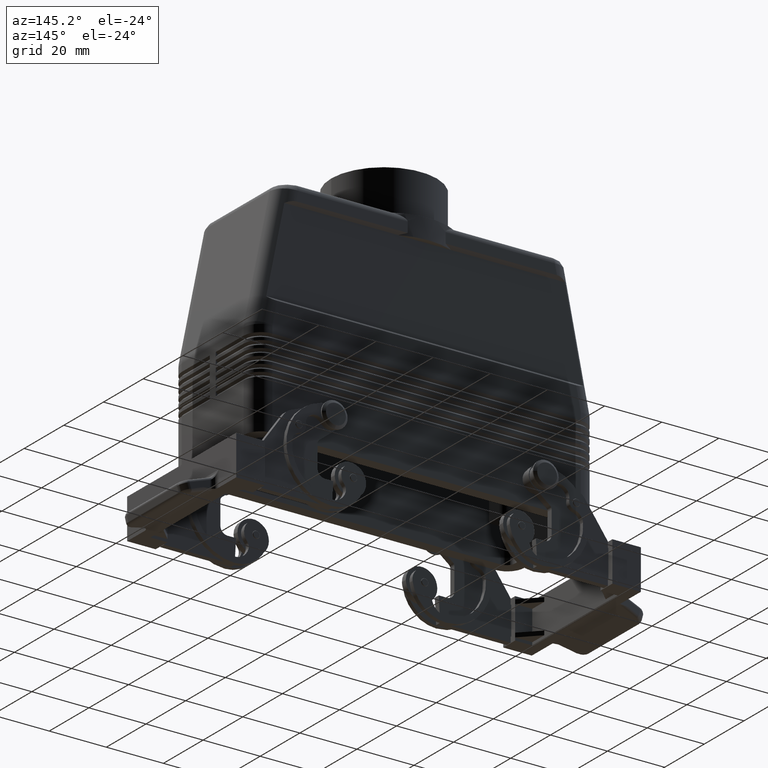
[diagram: clean part render]
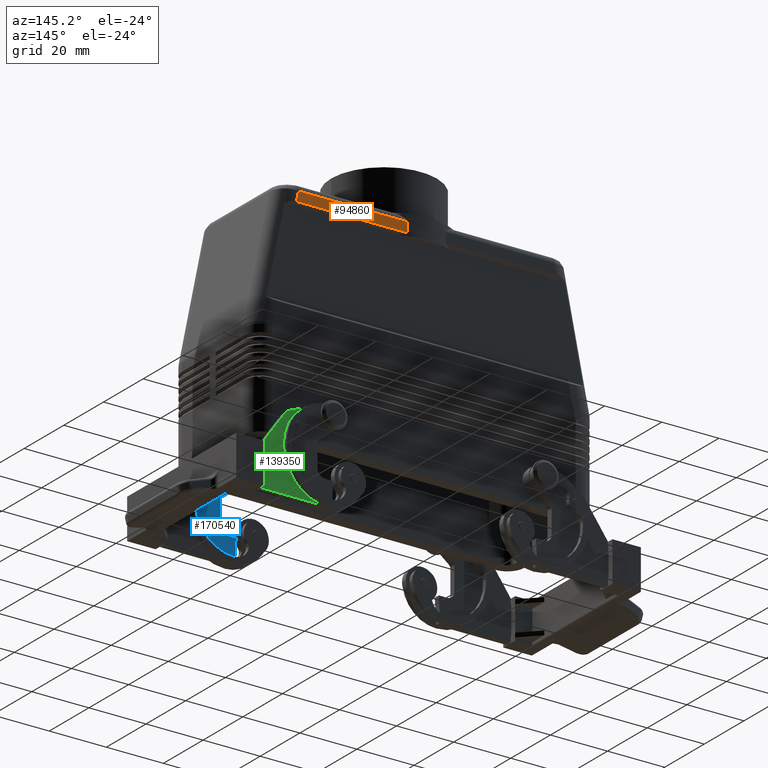
[diagram: same view with three faces highlighted in distinct colors, each labeled with its STEP entity id]
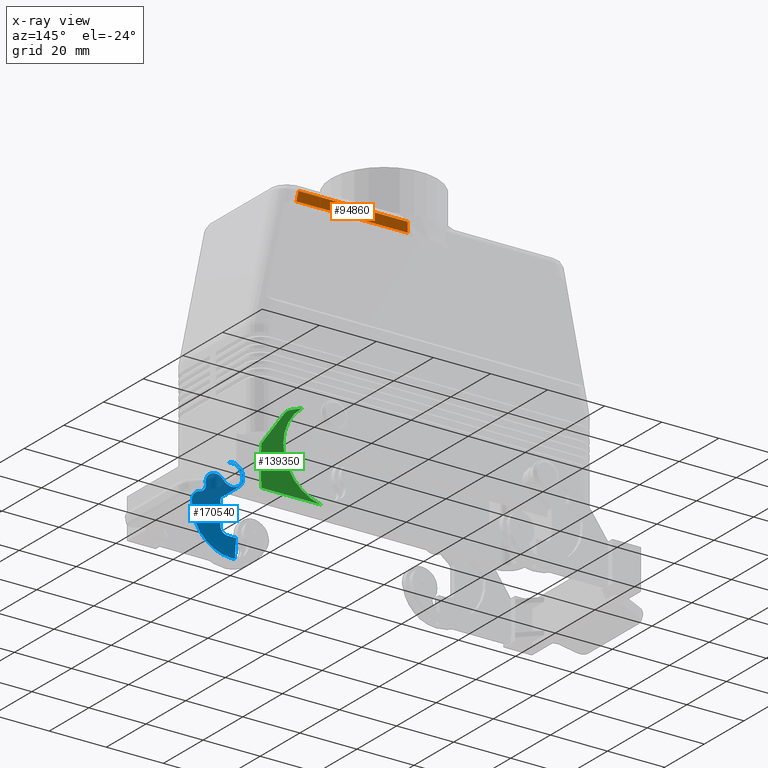
[diagram: x-ray of the same camera — body ghosted, the three highlighted faces saturated]
A machine part, auxiliary view with three faces highlighted in distinct colors.
The next image is the same camera in x-ray (body ghosted, the three faces saturated) — at least one of them is partly hidden behind the body in this view.
Their STEP definitions:

[orange] entity #94860 — the highlighted planar face has unit normal (0, 1, 0).
#9090=CARTESIAN_POINT('',(44.8868159268382,21.5,78.5));
#9100=VERTEX_POINT('',#9090);
#9130=CARTESIAN_POINT('',(45.6018696902791,21.5,75.));
#9140=DIRECTION('',(-0.200166412454263,0.,0.979761913591863));
#9150=VECTOR('',#9140,1.);
#9160=LINE('',#9130,#9150);
#9170=CARTESIAN_POINT('',(45.6018696902791,21.5,75.));
#9180=VERTEX_POINT('',#9170);
#9190=EDGE_CURVE('',#9180,#9100,#9160,.T.);
#63010=CARTESIAN_POINT('',(6.6332495807108,21.5,78.5));
#63020=VERTEX_POINT('',#63010);
#63050=CARTESIAN_POINT('',(44.8868159268382,21.5,78.5));
#63060=DIRECTION('',(-1.,0.,0.));
#63070=VECTOR('',#63060,1.);
#63080=LINE('',#63050,#63070);
#63090=EDGE_CURVE('',#9100,#63020,#63080,.T.);
#89880=CARTESIAN_POINT('',(6.6332495807108,21.5,75.));
#89890=VERTEX_POINT('',#89880);
#89920=CARTESIAN_POINT('',(6.63324958071082,21.5,74.));
#89930=DIRECTION('',(0.,0.,1.));
#89940=VECTOR('',#89930,1.);
#89950=LINE('',#89920,#89940);
#89960=EDGE_CURVE('',#89890,#63020,#89950,.T.);
#93710=CARTESIAN_POINT('',(0.,21.5,75.));
#93720=DIRECTION('',(-1.,0.,-0.));
#93730=VECTOR('',#93720,1.);
#93740=LINE('',#93710,#93730);
#93750=EDGE_CURVE('',#9180,#89890,#93740,.T.);
#94750=CARTESIAN_POINT('',(2.73638756975397,21.5,74.65));
#94760=DIRECTION('',(0.,1.,0.));
#94770=DIRECTION('',(1.,-0.,0.));
#94780=AXIS2_PLACEMENT_3D('',#94750,#94760,#94770);
#94790=PLANE('',#94780);
#94800=ORIENTED_EDGE('',*,*,#93750,.T.);
#94810=ORIENTED_EDGE('',*,*,#9190,.F.);
#94820=ORIENTED_EDGE('',*,*,#63090,.F.);
#94830=ORIENTED_EDGE('',*,*,#89960,.T.);
#94840=EDGE_LOOP('',(#94830,#94820,#94810,#94800));
#94850=FACE_OUTER_BOUND('',#94840,.T.);
#94860=ADVANCED_FACE('',(#94850),#94790,.T.);

[blue] entity #170540 — the highlighted planar face has unit normal (0, 1, 0).
#165530=CARTESIAN_POINT('',(34.5152545596591,-23.5,4.36534848879418));
#165540=VERTEX_POINT('',#165530);
#165620=CARTESIAN_POINT('',(40.4317795401278,-23.5,-0.324505683297822));
#165630=VERTEX_POINT('',#165620);
#165660=CARTESIAN_POINT('',(0.,-23.5,31.7245688304294));
#165670=DIRECTION('',(0.783662877801454,0.,-0.621186360085235));
#165680=VECTOR('',#165670,1.);
#165690=LINE('',#165660,#165680);
#165700=EDGE_CURVE('',#165540,#165630,#165690,.T.);
#165930=CARTESIAN_POINT('',(41.,-23.5,-1.5));
#165940=VERTEX_POINT('',#165930);
#165970=CARTESIAN_POINT('',(39.5000000000001,-23.5,-1.49999999999996));
#165980=DIRECTION('',(0.,1.,0.));
#165990=DIRECTION('',(1.,0.,0.));
#166000=AXIS2_PLACEMENT_3D('',#165970,#165980,#165990);
#166010=CIRCLE('',#166000,1.49999999999997);
#166020=EDGE_CURVE('',#165630,#165940,#166010,.T.);
#166250=CARTESIAN_POINT('',(41.,-23.5,-9.5));
#166260=VERTEX_POINT('',#166250);
#166290=CARTESIAN_POINT('',(41.,-23.5,0.));
#166300=DIRECTION('',(0.,0.,-1.));
#166310=VECTOR('',#166300,1.);
#166320=LINE('',#166290,#166310);
#166330=EDGE_CURVE('',#165940,#166260,#166320,.T.);
#166560=CARTESIAN_POINT('',(38.5,-23.5,-12.));
#166570=VERTEX_POINT('',#166560);
#166600=CARTESIAN_POINT('',(38.5,-23.5,-9.50000000000002));
#166610=DIRECTION('',(0.,1.,0.));
#166620=DIRECTION('',(1.,0.,0.));
#166630=AXIS2_PLACEMENT_3D('',#166600,#166610,#166620);
#166640=CIRCLE('',#166630,2.49999999999999);
#166650=EDGE_CURVE('',#166260,#166570,#166640,.T.);
#166880=CARTESIAN_POINT('',(35.5,-23.5,-12.));
#166890=VERTEX_POINT('',#166880);
#166920=CARTESIAN_POINT('',(0.,-23.5,-12.));
#166930=DIRECTION('',(-1.,0.,0.));
#166940=VECTOR('',#166930,1.);
#166950=LINE('',#166920,#166940);
#166960=EDGE_CURVE('',#166570,#166890,#166950,.T.);
#167350=CARTESIAN_POINT('',(35.8897158007142,-23.5,-18.6251686121422));
#167360=VERTEX_POINT('',#167350);
#167390=CARTESIAN_POINT('',(34.7941176470589,-23.5,0.));
#167400=DIRECTION('',(0.0587220219514677,0.,-0.998274373174996));
#167410=VECTOR('',#167400,1.);
#167420=LINE('',#167390,#167410);
#167430=EDGE_CURVE('',#166890,#167360,#167420,.T.);
#169240=CARTESIAN_POINT('',(38.4269414329817,-23.5,11.2368219313797));
#169250=VERTEX_POINT('',#169240);
#169280=CARTESIAN_POINT('',(0.,-23.5,25.9105194958872));
#169290=DIRECTION('',(-0.934205482844916,0.,0.356735358245434));
#169300=VECTOR('',#169290,1.);
#169310=LINE('',#169280,#169300);
#169320=CARTESIAN_POINT('',(38.6033381611588,-23.5,11.1694631423604));
#169330=VERTEX_POINT('',#169320);
#169340=EDGE_CURVE('',#169330,#169250,#169310,.T.);
#169610=CARTESIAN_POINT('',(37.,-23.5,7.5));
#169620=DIRECTION('',(-0.,-1.,-0.));
#169630=DIRECTION('',(1.,-0.,0.));
#169640=AXIS2_PLACEMENT_3D('',#169610,#169620,#169630);
#169650=CIRCLE('',#169640,4.00000000000001);
#169660=EDGE_CURVE('',#169250,#165540,#169650,.T.);
#169780=CARTESIAN_POINT('',(29.6858752550396,-23.5,-21.8710906839972));
#169790=DIRECTION('',(0.,1.,0.));
#169800=DIRECTION('',(1.,-0.,0.));
#169810=AXIS2_PLACEMENT_3D('',#169780,#169790,#169800);
#169820=PLANE('',#169810);
#169830=CARTESIAN_POINT('',(37.,-23.5,7.49999999999999));
#169840=DIRECTION('',(-0.,1.,-0.));
#169850=DIRECTION('',(-1.,0.,0.));
#169860=AXIS2_PLACEMENT_3D('',#169830,#169840,#169850);
#169870=CIRCLE('',#169860,3.75000000000001);
#169880=CARTESIAN_POINT('',(39.9402112933367,-23.5,5.17241379310345));
#169890=VERTEX_POINT('',#169880);
#169900=CARTESIAN_POINT('',(37.,-23.5,11.25));
#169910=VERTEX_POINT('',#169900);
#169920=EDGE_CURVE('',#169890,#169910,#169870,.T.);
#169930=ORIENTED_EDGE('',*,*,#169920,.F.);
#169940=CARTESIAN_POINT('',(37.,-23.5,-4.74999999999998));
#169950=DIRECTION('',(-0.,1.,-0.));
#169960=DIRECTION('',(-1.,0.,0.));
#169970=AXIS2_PLACEMENT_3D('',#169940,#169950,#169960);
#169980=CIRCLE('',#169970,16.);
#169990=EDGE_CURVE('',#169910,#169330,#169980,.T.);
#170000=ORIENTED_EDGE('',*,*,#169990,.F.);
#170010=ORIENTED_EDGE('',*,*,#169340,.F.);
#170020=ORIENTED_EDGE('',*,*,#169660,.F.);
#170030=ORIENTED_EDGE('',*,*,#165700,.F.);
#170040=ORIENTED_EDGE('',*,*,#166020,.F.);
#170050=ORIENTED_EDGE('',*,*,#166330,.F.);
#170060=ORIENTED_EDGE('',*,*,#166650,.F.);
#170070=ORIENTED_EDGE('',*,*,#166960,.F.);
#170080=ORIENTED_EDGE('',*,*,#167430,.F.);
#170090=CARTESIAN_POINT('',(37.,-23.5,-13.75));
#170100=DIRECTION('',(0.,-1.,0.));
#170110=DIRECTION('',(-1.,-0.,0.));
#170120=AXIS2_PLACEMENT_3D('',#170090,#170100,#170110);
#170130=CIRCLE('',#170120,5.);
#170140=CARTESIAN_POINT('',(37.,-23.5,-18.75));
#170150=VERTEX_POINT('',#170140);
#170160=EDGE_CURVE('',#167360,#170150,#170130,.T.);
#170170=ORIENTED_EDGE('',*,*,#170160,.F.);
#170180=CARTESIAN_POINT('',(37.,-23.5,-4.74999999999999));
#170190=DIRECTION('',(0.,-1.,0.));
#170200=DIRECTION('',(-1.,-0.,0.));
#170210=AXIS2_PLACEMENT_3D('',#170180,#170190,#170200);
#170220=CIRCLE('',#170210,14.);
#170230=CARTESIAN_POINT('',(50.9531315773184,-23.5,-3.60539562029516));
#170240=VERTEX_POINT('',#170230);
#170250=EDGE_CURVE('',#170150,#170240,#170220,.T.);
#170260=ORIENTED_EDGE('',*,*,#170250,.F.);
#170270=CARTESIAN_POINT('',(47.4648486829888,-23.5,-3.89154671522139));
#170280=DIRECTION('',(0.,-1.,0.));
#170290=DIRECTION('',(-1.,-0.,0.));
#170300=AXIS2_PLACEMENT_3D('',#170270,#170280,#170290);
#170310=CIRCLE('',#170300,3.50000000000002);
#170320=CARTESIAN_POINT('',(48.1273051166499,-23.5,-0.454811131342239));
#170330=VERTEX_POINT('',#170320);
#170340=EDGE_CURVE('',#170240,#170330,#170310,.T.);
#170350=ORIENTED_EDGE('',*,*,#170340,.F.);
#170360=CARTESIAN_POINT('',(48.6004882835506,-23.5,1.99999999999999));
#170370=DIRECTION('',(-0.,1.,-0.));
#170380=DIRECTION('',(-1.,0.,0.));
#170390=AXIS2_PLACEMENT_3D('',#170360,#170370,#170380);
#170400=CIRCLE('',#170390,2.49999999999998);
#170410=CARTESIAN_POINT('',(46.1354550405925,-23.5,2.41666666666667));
#170420=VERTEX_POINT('',#170410);
#170430=EDGE_CURVE('',#170330,#170420,#170400,.T.);
#170440=ORIENTED_EDGE('',*,*,#170430,.F.);
#170450=CARTESIAN_POINT('',(42.684408500451,-23.5,3.00000000000001));
#170460=DIRECTION('',(0.,-1.,0.));
#170470=DIRECTION('',(-1.,-0.,0.));
#170480=AXIS2_PLACEMENT_3D('',#170450,#170460,#170470);
#170490=CIRCLE('',#170480,3.49999999999998);
#170500=EDGE_CURVE('',#170420,#169890,#170490,.T.);
#170510=ORIENTED_EDGE('',*,*,#170500,.F.);
#170520=EDGE_LOOP('',(#170510,#170440,#170350,#170260,#170170,#170080,
#170070,#170060,#170050,#170040,#170030,#170020,#170010,#170000,#169930)
);
#170530=FACE_OUTER_BOUND('',#170520,.T.);
#170540=ADVANCED_FACE('',(#170530),#169820,.T.);

[green] entity #139350 — the highlighted planar face has unit normal (0, 1, 0).
#137100=CARTESIAN_POINT('',(60.9,25.5,-8.50000000000001));
#137110=VERTEX_POINT('',#137100);
#137140=CARTESIAN_POINT('',(60.9,25.5,0.));
#137150=DIRECTION('',(0.,0.,-1.));
#137160=VECTOR('',#137150,1.);
#137170=LINE('',#137140,#137160);
#137180=CARTESIAN_POINT('',(60.9,25.5,-18.5));
#137190=VERTEX_POINT('',#137180);
#137200=EDGE_CURVE('',#137110,#137190,#137170,.T.);
#138550=CARTESIAN_POINT('',(60.9,25.5,8.18630788274769));
#138560=DIRECTION('',(0.,1.,0.));
#138570=DIRECTION('',(1.,-0.,0.));
#138580=AXIS2_PLACEMENT_3D('',#138550,#138560,#138570);
#138590=PLANE('',#138580);
#138600=CARTESIAN_POINT('',(37.,25.5,-4.75000000000001));
#138610=DIRECTION('',(-0.,1.,-0.));
#138620=DIRECTION('',(-1.,0.,0.));
#138630=AXIS2_PLACEMENT_3D('',#138600,#138610,#138620);
#138640=CIRCLE('',#138630,16.);
#138650=CARTESIAN_POINT('',(46.4155158309442,25.5,8.18630788274769));
#138660=VERTEX_POINT('',#138650);
#138670=CARTESIAN_POINT('',(39.8173569173962,25.5,-20.5));
#138680=VERTEX_POINT('',#138670);
#138690=EDGE_CURVE('',#138660,#138680,#138640,.T.);
#138700=ORIENTED_EDGE('',*,*,#138690,.F.);
#138710=CARTESIAN_POINT('',(0.,25.5,-20.5));
#138720=DIRECTION('',(1.,-0.,0.));
#138730=VECTOR('',#138720,1.);
#138740=LINE('',#138710,#138730);
#138750=CARTESIAN_POINT('',(60.7,25.5,-20.5));
#138760=VERTEX_POINT('',#138750);
#138770=EDGE_CURVE('',#138680,#138760,#138740,.T.);
#138780=ORIENTED_EDGE('',*,*,#138770,.F.);
#138790=CARTESIAN_POINT('',(60.7,25.5,0.));
#138800=DIRECTION('',(-0.,-0.,1.));
#138810=VECTOR('',#138800,1.);
#138820=LINE('',#138790,#138810);
#138830=CARTESIAN_POINT('',(60.7,25.5,-18.5));
#138840=VERTEX_POINT('',#138830);
#138850=EDGE_CURVE('',#138760,#138840,#138820,.T.);
#138860=ORIENTED_EDGE('',*,*,#138850,.F.);
#138870=CARTESIAN_POINT('',(0.,25.5,-18.5));
#138880=DIRECTION('',(1.,-0.,0.));
#138890=VECTOR('',#138880,1.);
#138900=LINE('',#138870,#138890);
#138910=EDGE_CURVE('',#138840,#137190,#138900,.T.);
#138920=ORIENTED_EDGE('',*,*,#138910,.F.);
#138930=ORIENTED_EDGE('',*,*,#137200,.T.);
#138940=CARTESIAN_POINT('',(0.,25.5,-8.50000000000001));
#138950=DIRECTION('',(-1.,-0.,0.));
#138960=VECTOR('',#138950,1.);
#138970=LINE('',#138940,#138960);
#138980=CARTESIAN_POINT('',(60.7,25.5,-8.50000000000001));
#138990=VERTEX_POINT('',#138980);
#139000=EDGE_CURVE('',#137110,#138990,#138970,.T.);
#139010=ORIENTED_EDGE('',*,*,#139000,.F.);
#139020=CARTESIAN_POINT('',(60.7,25.5,0.));
#139030=DIRECTION('',(-0.,-0.,1.));
#139040=VECTOR('',#139030,1.);
#139050=LINE('',#139020,#139040);
#139060=CARTESIAN_POINT('',(60.7,25.5,-6.50000000000001));
#139070=VERTEX_POINT('',#139060);
#139080=EDGE_CURVE('',#138990,#139070,#139050,.T.);
#139090=ORIENTED_EDGE('',*,*,#139080,.F.);
#139100=CARTESIAN_POINT('',(56.123296786748,25.5,0.));
#139110=DIRECTION('',(-0.575714576955237,-0.,0.817650735877644));
#139120=VECTOR('',#139110,1.);
#139130=LINE('',#139100,#139120);
#139140=CARTESIAN_POINT('',(52.6882536793882,25.5,4.87857288477617));
#139150=VERTEX_POINT('',#139140);
#139160=EDGE_CURVE('',#139070,#139150,#139130,.T.);
#139170=ORIENTED_EDGE('',*,*,#139160,.F.);
#139180=CARTESIAN_POINT('',(48.6,25.5,1.99999999999993));
#139190=DIRECTION('',(-0.,-1.,-0.));
#139200=DIRECTION('',(1.,-0.,0.));
#139210=AXIS2_PLACEMENT_3D('',#139180,#139190,#139200);
#139220=CIRCLE('',#139210,5.00000000000009);
#139230=CARTESIAN_POINT('',(50.3836767912272,25.5,6.67102741422458));
#139240=VERTEX_POINT('',#139230);
#139250=EDGE_CURVE('',#139150,#139240,#139220,.T.);
#139260=ORIENTED_EDGE('',*,*,#139250,.F.);
#139270=CARTESIAN_POINT('',(0.,25.5,25.9105194958873));
#139280=DIRECTION('',(-0.934205482844915,-0.,0.356735358245435));
#139290=VECTOR('',#139280,1.);
#139300=LINE('',#139270,#139290);
#139310=EDGE_CURVE('',#139240,#138660,#139300,.T.);
#139320=ORIENTED_EDGE('',*,*,#139310,.F.);
#139330=EDGE_LOOP('',(#139320,#139260,#139170,#139090,#139010,#138930,
#138920,#138860,#138780,#138700));
#139340=FACE_OUTER_BOUND('',#139330,.T.);
#139350=ADVANCED_FACE('',(#139340),#138590,.T.);